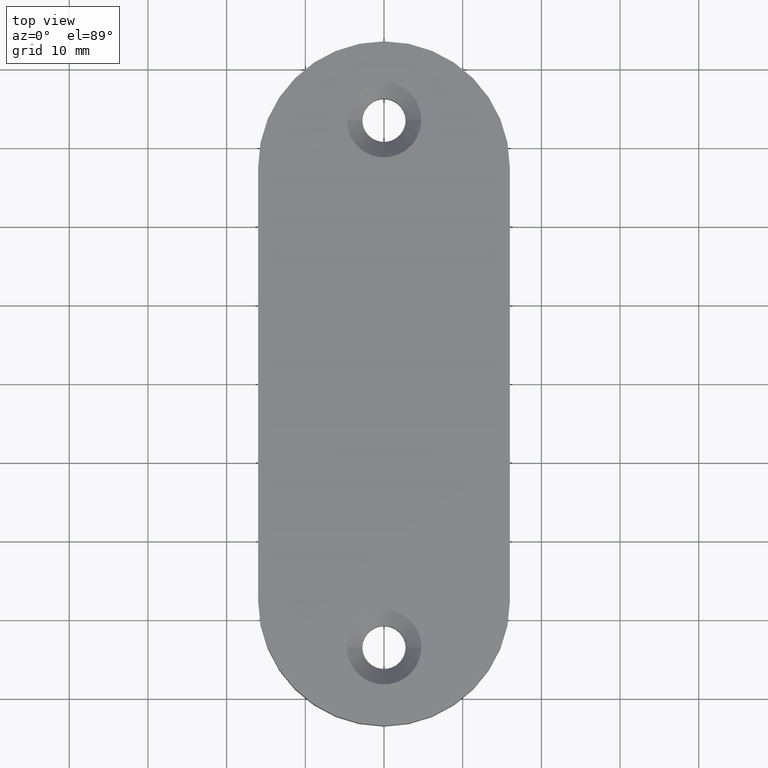
[diagram: clean part render]
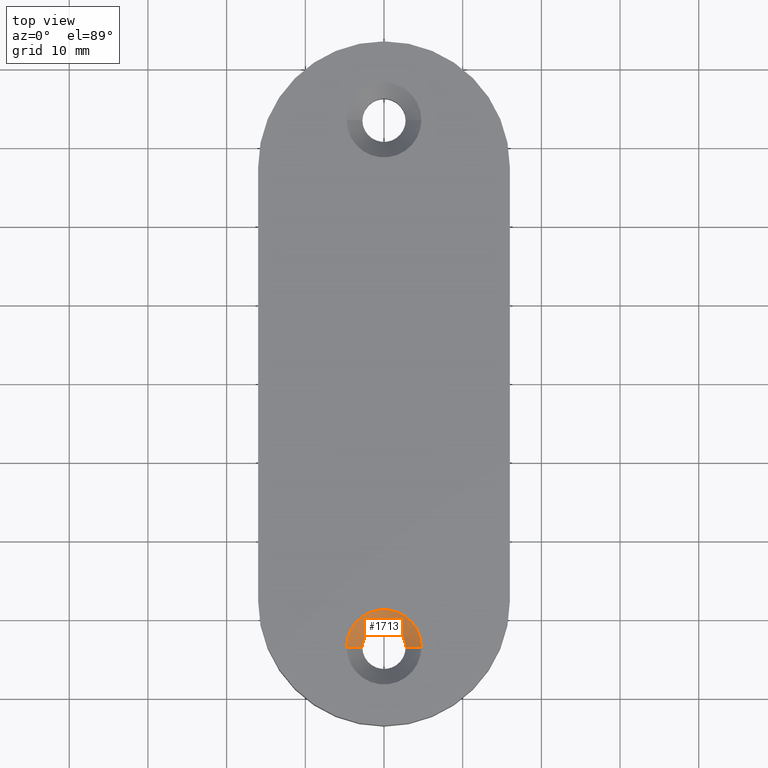
[diagram: same view with one face highlighted and labeled with its STEP entity id]
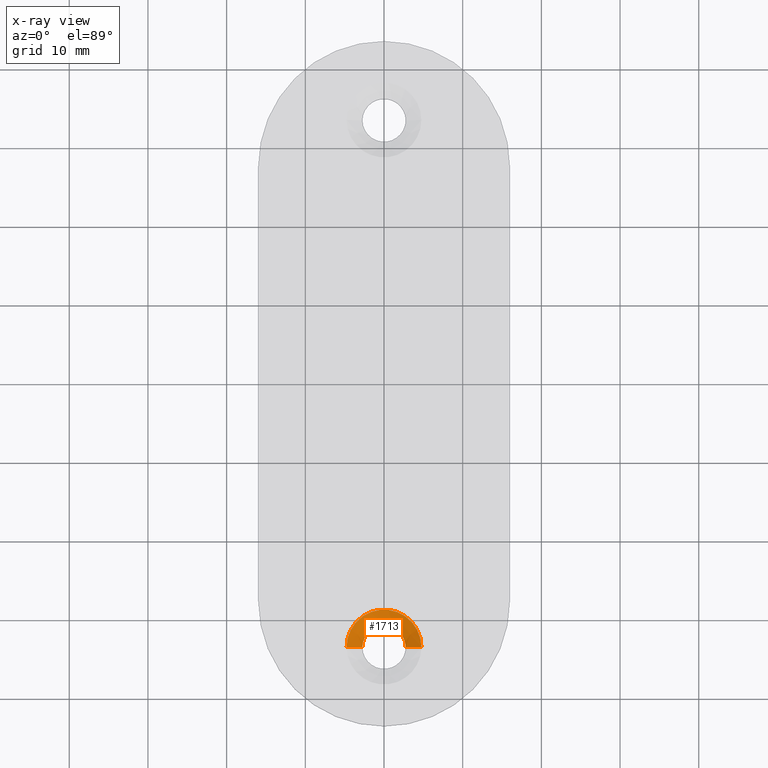
[diagram: x-ray of the same camera — body ghosted, the highlighted face saturated]
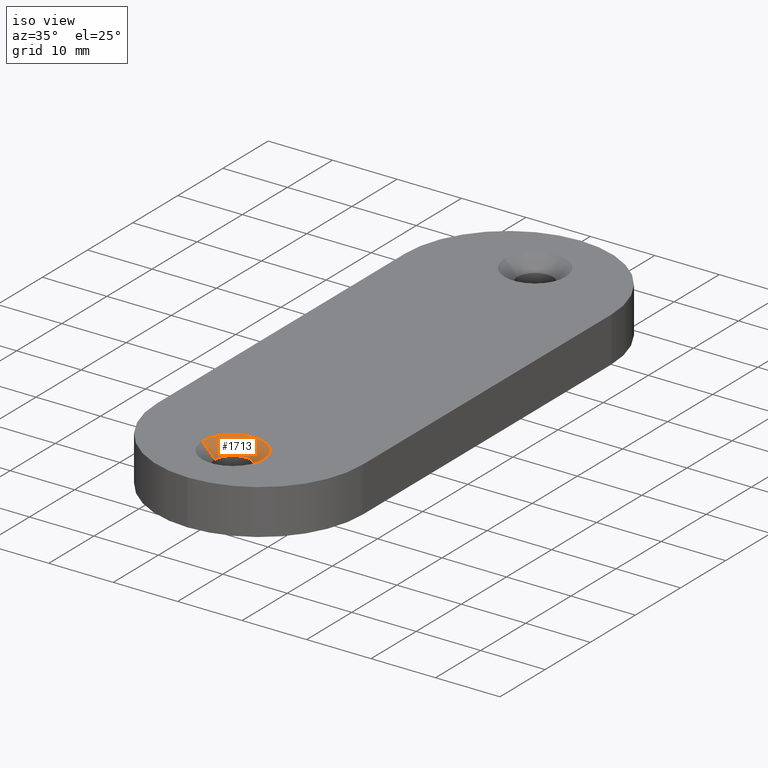
[diagram: same view with one face highlighted and labeled with its STEP entity id]
A machine part, top view. The second image highlights one B-rep face of the part: STEP entity #1713.
The next image is the same camera in x-ray: the body ghosted, the highlighted face saturated — about 0% of this face is hidden behind the body in this view.
A second angle (iso view) of the same face is appended — the face is thin or edge-on in the first view.
In plain terms, the highlighted conical surface has half-angle 45 deg.
Its self-contained STEP definition (entity closure, byte-faithful):
#155 = VERTEX_POINT ( 'NONE', #3090 ) ;
#219 = VERTEX_POINT ( 'NONE', #6683 ) ;
#273 = EDGE_LOOP ( 'NONE', ( #8190, #719, #7023, #873 ) ) ;
#484 = CONICAL_SURFACE ( 'NONE', #6265, 2.750000000000000444, 0.7853981633974528309 ) ;
#719 = ORIENTED_EDGE ( 'NONE', *, *, #978, .F. ) ;
#864 = AXIS2_PLACEMENT_3D ( 'NONE', #5430, #3836, #4731 ) ;
#873 = ORIENTED_EDGE ( 'NONE', *, *, #7385, .F. ) ;
#978 = EDGE_CURVE ( 'NONE', #155, #219, #6372, .T. ) ;
#1713 = ADVANCED_FACE ( 'NONE', ( #1782 ), #484, .F. ) ;
#1782 = FACE_OUTER_BOUND ( 'NONE', #273, .T. ) ;
#1888 = CARTESIAN_POINT ( 'NONE',  ( 0.000000000000000000, -33.50000000000000000, 7.000000000000000000 ) ) ;
#2119 = DIRECTION ( 'NONE',  ( 0.000000000000000000, 0.000000000000000000, 1.000000000000000000 ) ) ;
#2862 = CARTESIAN_POINT ( 'NONE',  ( 4.750000000000031974, -33.50000000000000000, 7.000000000000000000 ) ) ;
#2903 = CARTESIAN_POINT ( 'NONE',  ( 0.000000000000000000, -33.50000000000000000, 4.999999999999985789 ) ) ;
#2928 = EDGE_CURVE ( 'NONE', #155, #6685, #3770, .T. ) ;
#2937 = DIRECTION ( 'NONE',  ( 1.000000000000000000, 0.000000000000000000, 0.000000000000000000 ) ) ;
#3044 = VERTEX_POINT ( 'NONE', #3549 ) ;
#3090 = CARTESIAN_POINT ( 'NONE',  ( 2.750000000000000444, -33.50000000000000000, 4.999999999999985789 ) ) ;
#3226 = CIRCLE ( 'NONE', #9875, 4.750000000000031974 ) ;
#3549 = CARTESIAN_POINT ( 'NONE',  ( -4.750000000000031974, -33.50000000000000000, 7.000000000000000000 ) ) ;
#3770 = LINE ( 'NONE', #4076, #5069 ) ;
#3836 = DIRECTION ( 'NONE',  ( 0.000000000000000000, 0.000000000000000000, 1.000000000000000000 ) ) ;
#4076 = CARTESIAN_POINT ( 'NONE',  ( 2.750000000000000444, -33.50000000000000000, 4.999999999999985789 ) ) ;
#4389 = DIRECTION ( 'NONE',  ( -0.7071067811865506814, 8.659560562354971069E-17, 0.7071067811865443531 ) ) ;
#4731 = DIRECTION ( 'NONE',  ( 1.000000000000000000, 0.000000000000000000, 0.000000000000000000 ) ) ;
#5069 = VECTOR ( 'NONE', #9816, 1000.000000000000114 ) ;
#5306 = CARTESIAN_POINT ( 'NONE',  ( -2.750000000000000444, -33.50000000000000000, 4.999999999999985789 ) ) ;
#5430 = CARTESIAN_POINT ( 'NONE',  ( 0.000000000000000000, -33.50000000000000000, 4.999999999999985789 ) ) ;
#5455 = EDGE_CURVE ( 'NONE', #219, #3044, #6062, .T. ) ;
#6062 = LINE ( 'NONE', #5306, #8100 ) ;
#6265 = AXIS2_PLACEMENT_3D ( 'NONE', #2903, #2119, #2937 ) ;
#6372 = CIRCLE ( 'NONE', #864, 2.750000000000000444 ) ;
#6683 = CARTESIAN_POINT ( 'NONE',  ( -2.750000000000000444, -33.50000000000000000, 4.999999999999985789 ) ) ;
#6685 = VERTEX_POINT ( 'NONE', #2862 ) ;
#7023 = ORIENTED_EDGE ( 'NONE', *, *, #2928, .T. ) ;
#7385 = EDGE_CURVE ( 'NONE', #3044, #6685, #3226, .T. ) ;
#7571 = DIRECTION ( 'NONE',  ( 1.000000000000000000, 0.000000000000000000, 0.000000000000000000 ) ) ;
#8100 = VECTOR ( 'NONE', #4389, 1000.000000000000114 ) ;
#8190 = ORIENTED_EDGE ( 'NONE', *, *, #5455, .F. ) ;
#9207 = DIRECTION ( 'NONE',  ( 0.000000000000000000, -0.000000000000000000, -1.000000000000000000 ) ) ;
#9816 = DIRECTION ( 'NONE',  ( 0.7071067811865506814, 0.000000000000000000, 0.7071067811865443531 ) ) ;
#9875 = AXIS2_PLACEMENT_3D ( 'NONE', #1888, #9207, #7571 ) ;